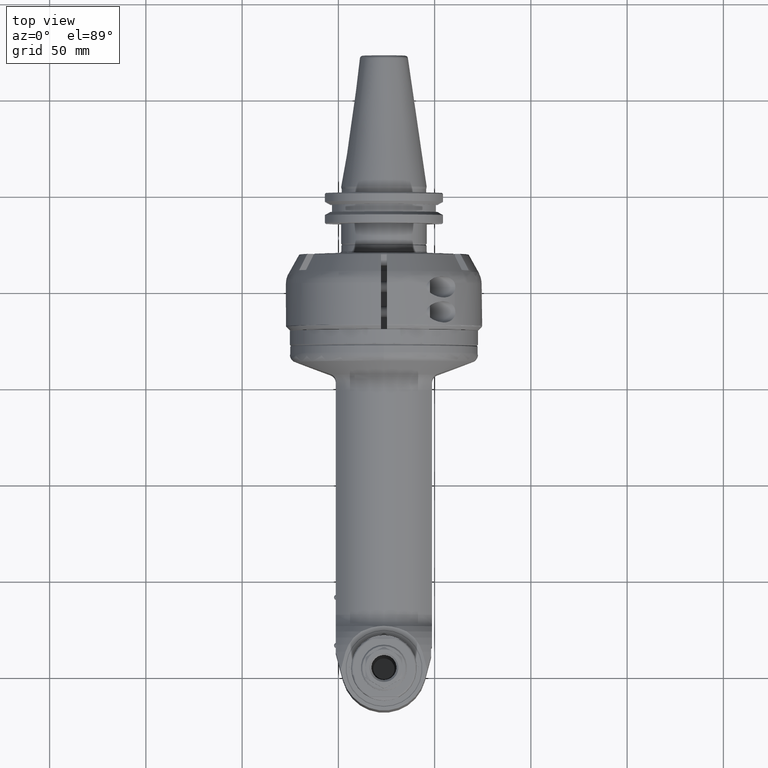
[diagram: clean part render]
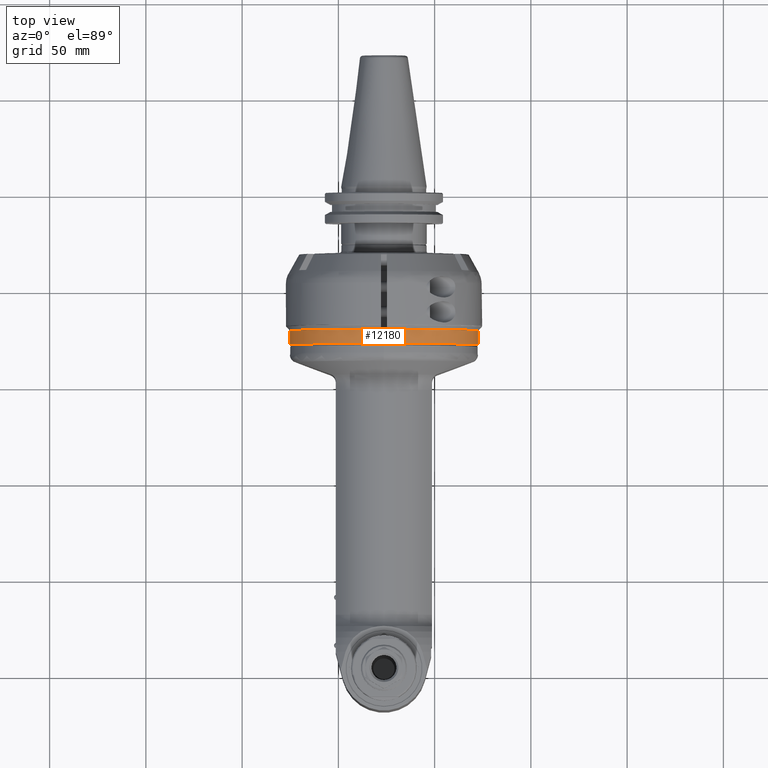
[diagram: same view with one face highlighted and labeled with its STEP entity id]
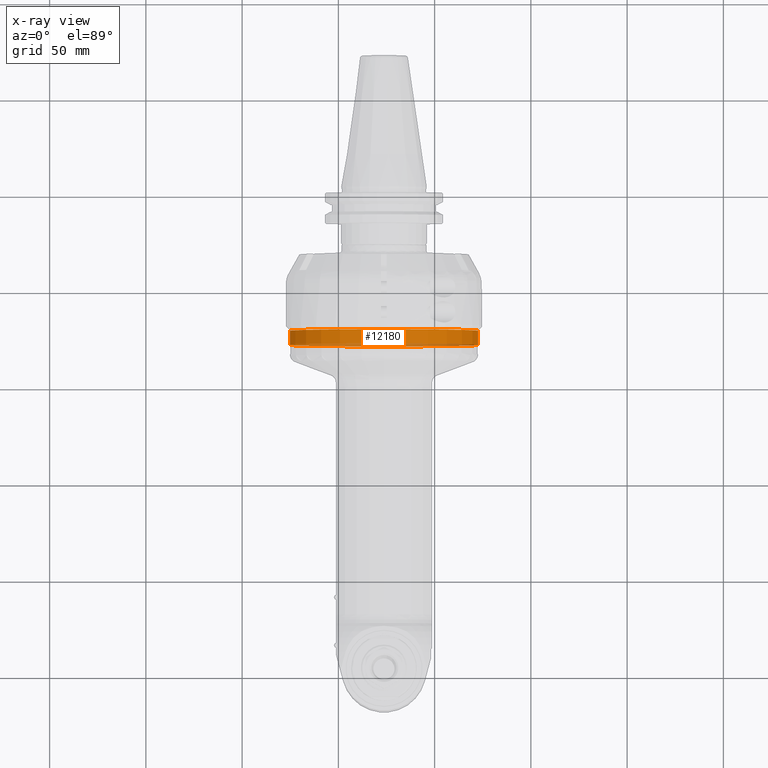
[diagram: x-ray of the same camera — body ghosted, the highlighted face saturated]
A machine part, top view. The second image highlights one B-rep face of the part: STEP entity #12180.
The next image is the same camera in x-ray: the body ghosted, the highlighted face saturated — about 15% of this face is hidden behind the body in this view.
In plain terms, the highlighted cylindrical surface (bore or boss wall) has radius 49.2 mm, axis along (-0, 1, 0).
Its self-contained STEP definition (entity closure, byte-faithful):
#499=CYLINDRICAL_SURFACE('',#12941,49.2);
#823=CIRCLE('',#12935,49.2);
#826=CIRCLE('',#12940,49.2);
#1496=FACE_OUTER_BOUND('',#2196,.T.);
#2196=EDGE_LOOP('',(#8153,#8154,#8155,#8156));
#3030=LINE('',#18066,#3989);
#3989=VECTOR('',#14351,49.2);
#4943=VERTEX_POINT('',#18054);
#4946=VERTEX_POINT('',#18063);
#6257=EDGE_CURVE('',#4943,#4943,#823,.T.);
#6261=EDGE_CURVE('',#4946,#4946,#826,.T.);
#6262=EDGE_CURVE('',#4946,#4943,#3030,.T.);
#8153=ORIENTED_EDGE('',*,*,#6261,.F.);
#8154=ORIENTED_EDGE('',*,*,#6262,.T.);
#8155=ORIENTED_EDGE('',*,*,#6257,.F.);
#8156=ORIENTED_EDGE('',*,*,#6262,.F.);
#12180=ADVANCED_FACE('',(#1496),#499,.T.);
#12935=AXIS2_PLACEMENT_3D('',#18055,#14336,#14337);
#12940=AXIS2_PLACEMENT_3D('',#18064,#14347,#14348);
#12941=AXIS2_PLACEMENT_3D('',#18065,#14349,#14350);
#14336=DIRECTION('center_axis',(1.,0.,0.));
#14337=DIRECTION('ref_axis',(0.,1.,0.));
#14347=DIRECTION('center_axis',(-1.,0.,0.));
#14348=DIRECTION('ref_axis',(0.,1.,0.));
#14349=DIRECTION('center_axis',(-1.,0.,0.));
#14350=DIRECTION('ref_axis',(0.,-1.,0.));
#14351=DIRECTION('',(1.,0.,0.));
#18054=CARTESIAN_POINT('',(11.5,49.2,-6.02526225180498E-15));
#18055=CARTESIAN_POINT('Origin',(11.5,0.,0.));
#18063=CARTESIAN_POINT('',(4.2,49.2,-6.02526225180498E-15));
#18064=CARTESIAN_POINT('Origin',(4.2,0.,0.));
#18065=CARTESIAN_POINT('Origin',(11.865,0.,0.));
#18066=CARTESIAN_POINT('',(11.865,49.2,-6.02526225180498E-15));